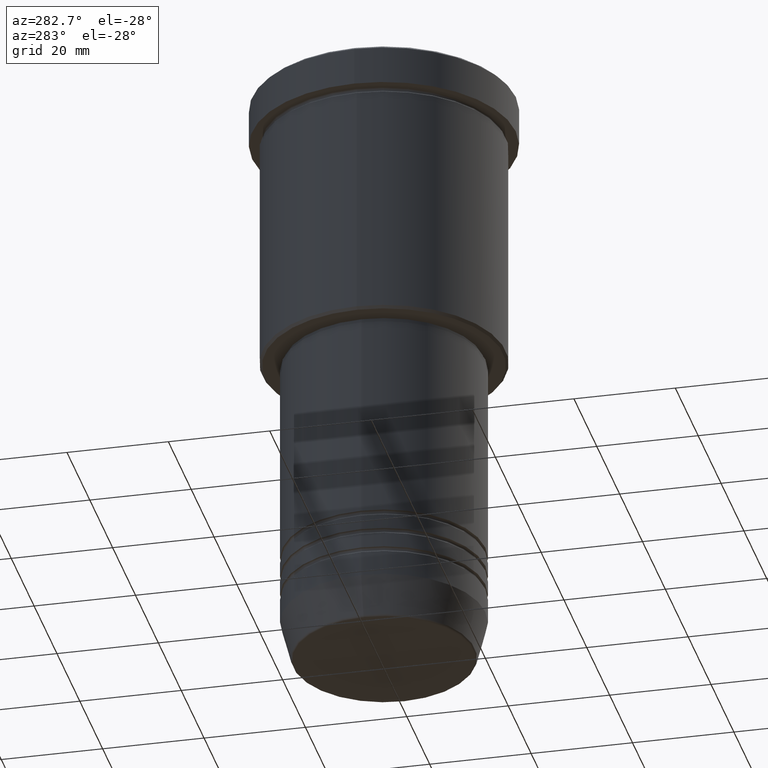
[diagram: clean part render]
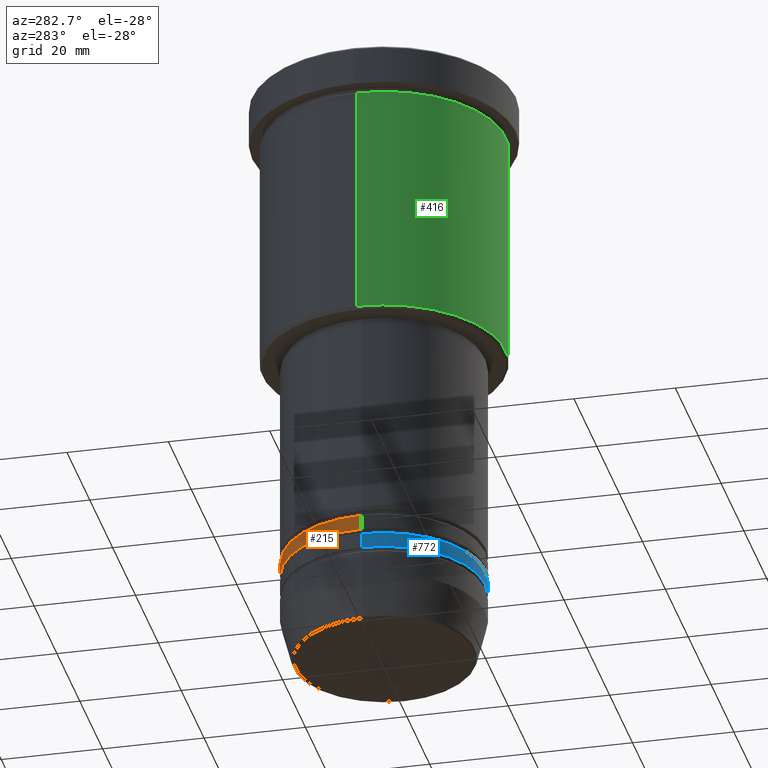
[diagram: same view with three faces highlighted in distinct colors, each labeled with its STEP entity id]
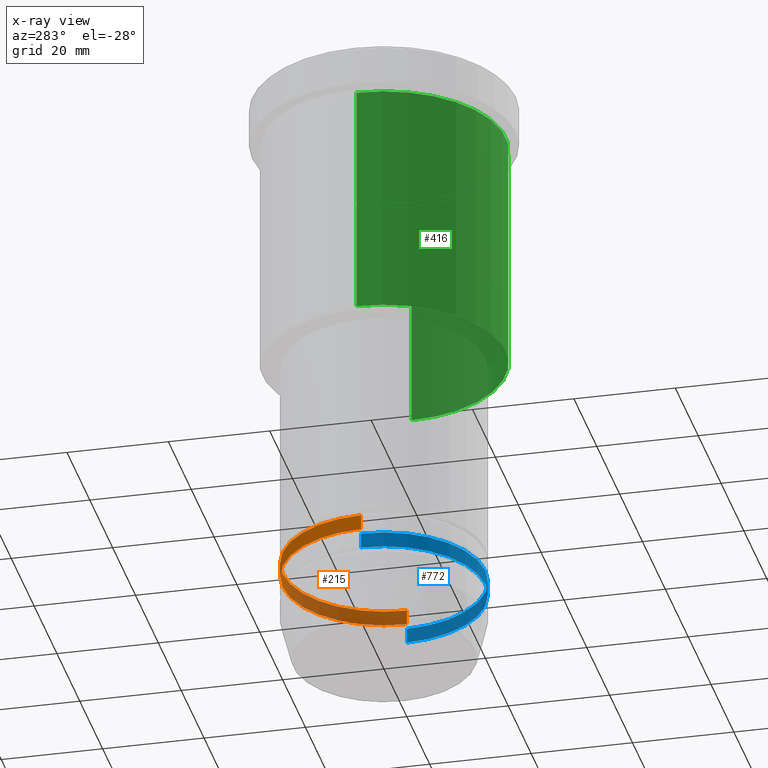
[diagram: x-ray of the same camera — body ghosted, the three highlighted faces saturated]
A machine part, auxiliary view with three faces highlighted in distinct colors.
The next image is the same camera in x-ray (body ghosted, the three faces saturated) — at least one of them is partly hidden behind the body in this view.
Their STEP definitions:

[orange] entity #215 — the highlighted cylindrical surface (partial cylindrical patch) has radius 20 mm, axis along (-0, -0, 1).
#12 = DIRECTION ( 'NONE',  ( 1.000000000000000000, 0.000000000000000000, 0.000000000000000000 ) ) ;
#35 = VECTOR ( 'NONE', #743, 1000.000000000000000 ) ;
#77 = CYLINDRICAL_SURFACE ( 'NONE', #669, 20.00000000000000355 ) ;
#100 = DIRECTION ( 'NONE',  ( -0.000000000000000000, -0.000000000000000000, 1.000000000000000000 ) ) ;
#202 = DIRECTION ( 'NONE',  ( 1.000000000000000000, 0.000000000000000000, 0.000000000000000000 ) ) ;
#215 = ADVANCED_FACE ( 'NONE', ( #980 ), #77, .T. ) ;
#223 = ORIENTED_EDGE ( 'NONE', *, *, #295, .F. ) ;
#244 = VERTEX_POINT ( 'NONE', #748 ) ;
#290 = EDGE_CURVE ( 'NONE', #952, #244, #922, .T. ) ;
#295 = EDGE_CURVE ( 'NONE', #918, #244, #1135, .T. ) ;
#338 = EDGE_CURVE ( 'NONE', #801, #918, #370, .T. ) ;
#370 = LINE ( 'NONE', #1016, #671 ) ;
#439 = DIRECTION ( 'NONE',  ( -0.000000000000000000, -0.000000000000000000, 1.000000000000000000 ) ) ;
#461 = DIRECTION ( 'NONE',  ( -0.000000000000000000, -0.000000000000000000, 1.000000000000000000 ) ) ;
#530 = DIRECTION ( 'NONE',  ( 1.000000000000000000, 0.000000000000000000, 0.000000000000000000 ) ) ;
#557 = DIRECTION ( 'NONE',  ( -0.000000000000000000, -0.000000000000000000, 1.000000000000000000 ) ) ;
#613 = EDGE_LOOP ( 'NONE', ( #1046, #1106, #223, #1164 ) ) ;
#629 = CARTESIAN_POINT ( 'NONE',  ( 0.000000000000000000, 0.000000000000000000, 0.000000000000000000 ) ) ;
#639 = CARTESIAN_POINT ( 'NONE',  ( 20.00000000000000355, 0.000000000000000000, -101.9999999999999858 ) ) ;
#653 = CARTESIAN_POINT ( 'NONE',  ( 0.000000000000000000, 0.000000000000000000, -98.99999999999997158 ) ) ;
#669 = AXIS2_PLACEMENT_3D ( 'NONE', #629, #439, #530 ) ;
#671 = VECTOR ( 'NONE', #557, 1000.000000000000000 ) ;
#743 = DIRECTION ( 'NONE',  ( -0.000000000000000000, -0.000000000000000000, 1.000000000000000000 ) ) ;
#748 = CARTESIAN_POINT ( 'NONE',  ( -20.00000000000000000, 2.449293598294706513E-15, -98.99999999999997158 ) ) ;
#788 = EDGE_CURVE ( 'NONE', #801, #952, #1041, .T. ) ;
#801 = VERTEX_POINT ( 'NONE', #639 ) ;
#832 = AXIS2_PLACEMENT_3D ( 'NONE', #1110, #100, #12 ) ;
#911 = CARTESIAN_POINT ( 'NONE',  ( -20.00000000000000355, 2.449293598294706907E-15, 0.000000000000000000 ) ) ;
#918 = VERTEX_POINT ( 'NONE', #932 ) ;
#922 = LINE ( 'NONE', #911, #35 ) ;
#932 = CARTESIAN_POINT ( 'NONE',  ( 20.00000000000000000, 0.000000000000000000, -98.99999999999997158 ) ) ;
#952 = VERTEX_POINT ( 'NONE', #1124 ) ;
#958 = AXIS2_PLACEMENT_3D ( 'NONE', #653, #461, #202 ) ;
#980 = FACE_OUTER_BOUND ( 'NONE', #613, .T. ) ;
#1016 = CARTESIAN_POINT ( 'NONE',  ( 20.00000000000000355, 0.000000000000000000, 0.000000000000000000 ) ) ;
#1041 = CIRCLE ( 'NONE', #832, 20.00000000000000355 ) ;
#1046 = ORIENTED_EDGE ( 'NONE', *, *, #788, .T. ) ;
#1106 = ORIENTED_EDGE ( 'NONE', *, *, #290, .T. ) ;
#1110 = CARTESIAN_POINT ( 'NONE',  ( 0.000000000000000000, 0.000000000000000000, -101.9999999999999858 ) ) ;
#1124 = CARTESIAN_POINT ( 'NONE',  ( -20.00000000000000355, 2.449293598294706907E-15, -101.9999999999999858 ) ) ;
#1135 = CIRCLE ( 'NONE', #958, 20.00000000000000000 ) ;
#1164 = ORIENTED_EDGE ( 'NONE', *, *, #338, .F. ) ;

[blue] entity #772 — the highlighted cylindrical surface (partial cylindrical patch) has radius 20 mm, axis along (-0, -0, 1).
#49 = AXIS2_PLACEMENT_3D ( 'NONE', #891, #173, #699 ) ;
#173 = DIRECTION ( 'NONE',  ( -0.000000000000000000, -0.000000000000000000, 1.000000000000000000 ) ) ;
#178 = CARTESIAN_POINT ( 'NONE',  ( -20.00000000000000000, 2.449293598294706513E-15, -102.9999999999999858 ) ) ;
#201 = DIRECTION ( 'NONE',  ( -0.000000000000000000, -0.000000000000000000, 1.000000000000000000 ) ) ;
#207 = EDGE_CURVE ( 'NONE', #865, #1089, #1023, .T. ) ;
#231 = CARTESIAN_POINT ( 'NONE',  ( 20.00000000000000000, 0.000000000000000000, -102.9999999999999858 ) ) ;
#243 = VERTEX_POINT ( 'NONE', #387 ) ;
#255 = LINE ( 'NONE', #1079, #903 ) ;
#309 = EDGE_CURVE ( 'NONE', #944, #243, #521, .T. ) ;
#321 = EDGE_CURVE ( 'NONE', #944, #865, #460, .T. ) ;
#387 = CARTESIAN_POINT ( 'NONE',  ( 20.00000000000000355, 0.000000000000000000, -105.9999999999999716 ) ) ;
#389 = DIRECTION ( 'NONE',  ( 1.000000000000000000, 0.000000000000000000, 0.000000000000000000 ) ) ;
#409 = EDGE_CURVE ( 'NONE', #243, #1089, #255, .T. ) ;
#424 = FACE_OUTER_BOUND ( 'NONE', #511, .T. ) ;
#460 = LINE ( 'NONE', #1019, #941 ) ;
#511 = EDGE_LOOP ( 'NONE', ( #606, #864, #666, #1036 ) ) ;
#521 = CIRCLE ( 'NONE', #981, 20.00000000000000355 ) ;
#535 = DIRECTION ( 'NONE',  ( -0.000000000000000000, -0.000000000000000000, 1.000000000000000000 ) ) ;
#545 = DIRECTION ( 'NONE',  ( -0.000000000000000000, -0.000000000000000000, 1.000000000000000000 ) ) ;
#568 = CARTESIAN_POINT ( 'NONE',  ( 0.000000000000000000, 0.000000000000000000, -105.9999999999999716 ) ) ;
#606 = ORIENTED_EDGE ( 'NONE', *, *, #321, .F. ) ;
#666 = ORIENTED_EDGE ( 'NONE', *, *, #409, .T. ) ;
#699 = DIRECTION ( 'NONE',  ( 1.000000000000000000, 0.000000000000000000, 0.000000000000000000 ) ) ;
#724 = DIRECTION ( 'NONE',  ( 1.000000000000000000, 0.000000000000000000, 0.000000000000000000 ) ) ;
#737 = AXIS2_PLACEMENT_3D ( 'NONE', #970, #545, #724 ) ;
#772 = ADVANCED_FACE ( 'NONE', ( #424 ), #1153, .T. ) ;
#843 = CARTESIAN_POINT ( 'NONE',  ( -20.00000000000000355, 2.449293598294706907E-15, -105.9999999999999716 ) ) ;
#864 = ORIENTED_EDGE ( 'NONE', *, *, #309, .T. ) ;
#865 = VERTEX_POINT ( 'NONE', #178 ) ;
#891 = CARTESIAN_POINT ( 'NONE',  ( 0.000000000000000000, 0.000000000000000000, -102.9999999999999858 ) ) ;
#903 = VECTOR ( 'NONE', #535, 1000.000000000000000 ) ;
#933 = DIRECTION ( 'NONE',  ( -0.000000000000000000, -0.000000000000000000, 1.000000000000000000 ) ) ;
#941 = VECTOR ( 'NONE', #201, 1000.000000000000000 ) ;
#944 = VERTEX_POINT ( 'NONE', #843 ) ;
#970 = CARTESIAN_POINT ( 'NONE',  ( 0.000000000000000000, 0.000000000000000000, 0.000000000000000000 ) ) ;
#981 = AXIS2_PLACEMENT_3D ( 'NONE', #568, #933, #389 ) ;
#1019 = CARTESIAN_POINT ( 'NONE',  ( -20.00000000000000355, 2.449293598294706907E-15, 0.000000000000000000 ) ) ;
#1023 = CIRCLE ( 'NONE', #49, 20.00000000000000000 ) ;
#1036 = ORIENTED_EDGE ( 'NONE', *, *, #207, .F. ) ;
#1079 = CARTESIAN_POINT ( 'NONE',  ( 20.00000000000000355, 0.000000000000000000, 0.000000000000000000 ) ) ;
#1089 = VERTEX_POINT ( 'NONE', #231 ) ;
#1153 = CYLINDRICAL_SURFACE ( 'NONE', #737, 20.00000000000000355 ) ;

[green] entity #416 — the highlighted cylindrical surface (partial cylindrical patch) has radius 24 mm, axis along (-0, -0, 1).
#40 = CARTESIAN_POINT ( 'NONE',  ( 0.000000000000000000, 0.000000000000000000, -55.50000000000002132 ) ) ;
#102 = VERTEX_POINT ( 'NONE', #323 ) ;
#123 = EDGE_CURVE ( 'NONE', #912, #102, #734, .T. ) ;
#213 = CARTESIAN_POINT ( 'NONE',  ( -24.00000000000000000, 2.939152317953647894E-15, -55.50000000000002132 ) ) ;
#236 = LINE ( 'NONE', #617, #959 ) ;
#246 = VERTEX_POINT ( 'NONE', #272 ) ;
#272 = CARTESIAN_POINT ( 'NONE',  ( -24.00000000000000000, 2.939152317953647894E-15, -8.999999999999994671 ) ) ;
#314 = AXIS2_PLACEMENT_3D ( 'NONE', #40, #328, #686 ) ;
#323 = CARTESIAN_POINT ( 'NONE',  ( 24.00000000000000000, 0.000000000000000000, -55.50000000000002132 ) ) ;
#325 = DIRECTION ( 'NONE',  ( -0.000000000000000000, -0.000000000000000000, 1.000000000000000000 ) ) ;
#328 = DIRECTION ( 'NONE',  ( -0.000000000000000000, -0.000000000000000000, 1.000000000000000000 ) ) ;
#393 = AXIS2_PLACEMENT_3D ( 'NONE', #1033, #974, #986 ) ;
#408 = AXIS2_PLACEMENT_3D ( 'NONE', #1180, #542, #616 ) ;
#416 = ADVANCED_FACE ( 'NONE', ( #1060 ), #449, .T. ) ;
#421 = DIRECTION ( 'NONE',  ( -0.000000000000000000, -0.000000000000000000, 1.000000000000000000 ) ) ;
#426 = ORIENTED_EDGE ( 'NONE', *, *, #123, .T. ) ;
#449 = CYLINDRICAL_SURFACE ( 'NONE', #408, 24.00000000000000000 ) ;
#487 = VERTEX_POINT ( 'NONE', #824 ) ;
#542 = DIRECTION ( 'NONE',  ( -0.000000000000000000, -0.000000000000000000, 1.000000000000000000 ) ) ;
#578 = VECTOR ( 'NONE', #325, 1000.000000000000000 ) ;
#584 = EDGE_CURVE ( 'NONE', #246, #487, #623, .T. ) ;
#596 = ORIENTED_EDGE ( 'NONE', *, *, #584, .F. ) ;
#616 = DIRECTION ( 'NONE',  ( 1.000000000000000000, 0.000000000000000000, 0.000000000000000000 ) ) ;
#617 = CARTESIAN_POINT ( 'NONE',  ( 24.00000000000000000, 0.000000000000000000, 0.000000000000000000 ) ) ;
#623 = CIRCLE ( 'NONE', #393, 24.00000000000000000 ) ;
#686 = DIRECTION ( 'NONE',  ( -1.000000000000000000, 0.000000000000000000, 0.000000000000000000 ) ) ;
#726 = EDGE_CURVE ( 'NONE', #102, #487, #236, .T. ) ;
#734 = CIRCLE ( 'NONE', #314, 24.00000000000000000 ) ;
#821 = EDGE_LOOP ( 'NONE', ( #1148, #426, #1154, #596 ) ) ;
#824 = CARTESIAN_POINT ( 'NONE',  ( 24.00000000000000000, 0.000000000000000000, -8.999999999999994671 ) ) ;
#866 = CARTESIAN_POINT ( 'NONE',  ( -24.00000000000000000, 2.939152317953647894E-15, 0.000000000000000000 ) ) ;
#912 = VERTEX_POINT ( 'NONE', #213 ) ;
#959 = VECTOR ( 'NONE', #421, 1000.000000000000000 ) ;
#969 = LINE ( 'NONE', #866, #578 ) ;
#974 = DIRECTION ( 'NONE',  ( -0.000000000000000000, -0.000000000000000000, 1.000000000000000000 ) ) ;
#986 = DIRECTION ( 'NONE',  ( 1.000000000000000000, 0.000000000000000000, 0.000000000000000000 ) ) ;
#1033 = CARTESIAN_POINT ( 'NONE',  ( 0.000000000000000000, 0.000000000000000000, -8.999999999999994671 ) ) ;
#1055 = EDGE_CURVE ( 'NONE', #912, #246, #969, .T. ) ;
#1060 = FACE_OUTER_BOUND ( 'NONE', #821, .T. ) ;
#1148 = ORIENTED_EDGE ( 'NONE', *, *, #1055, .F. ) ;
#1154 = ORIENTED_EDGE ( 'NONE', *, *, #726, .T. ) ;
#1180 = CARTESIAN_POINT ( 'NONE',  ( 0.000000000000000000, 0.000000000000000000, 0.000000000000000000 ) ) ;